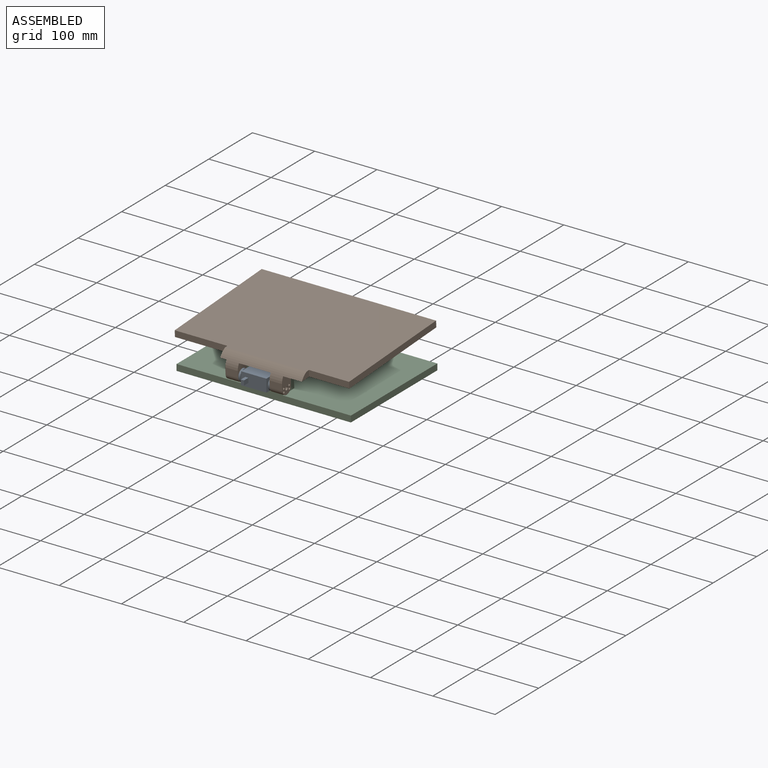
[diagram: assembled view]
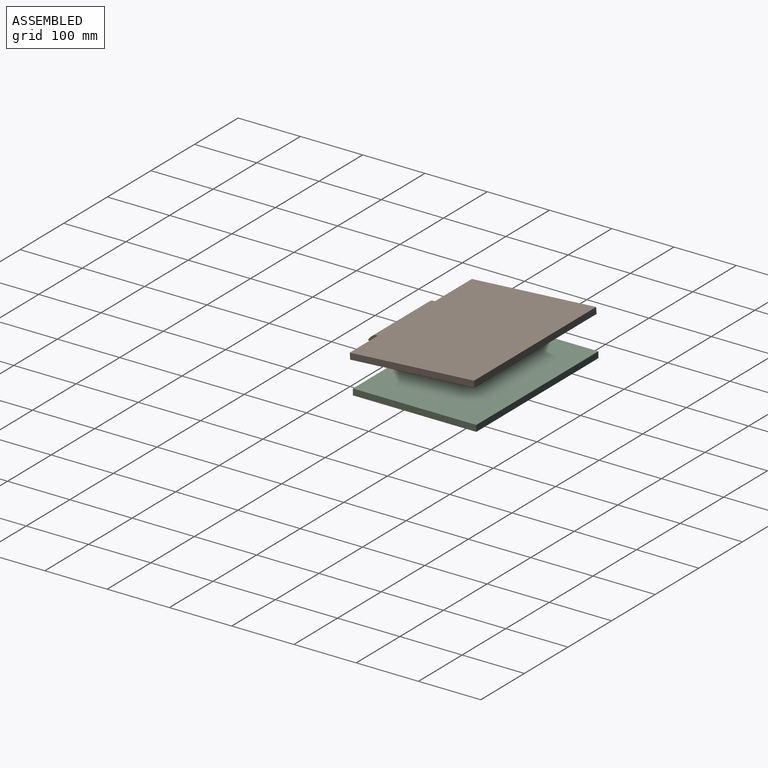
[diagram: assembled view, second angle]
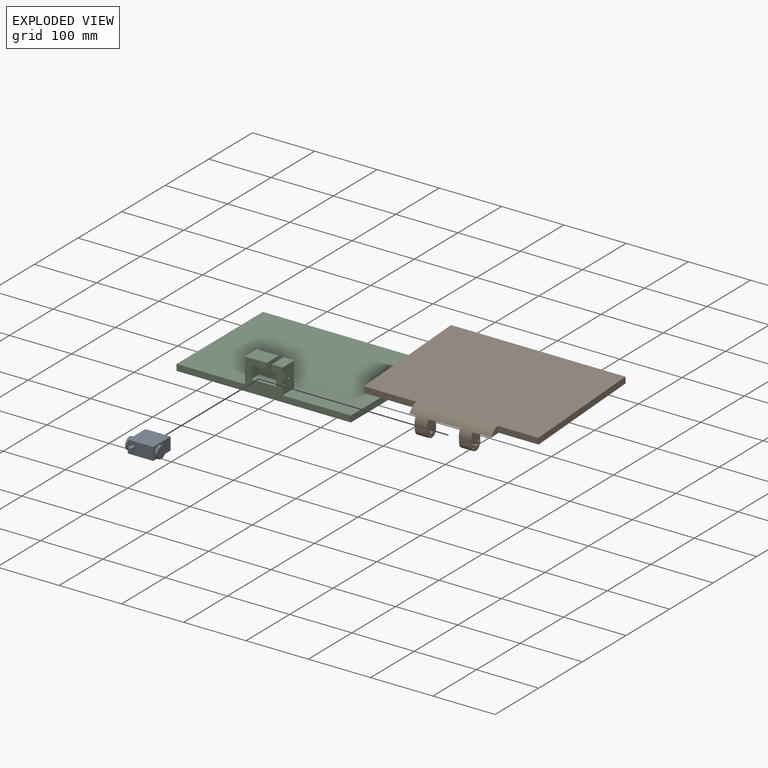
[diagram: exploded view]
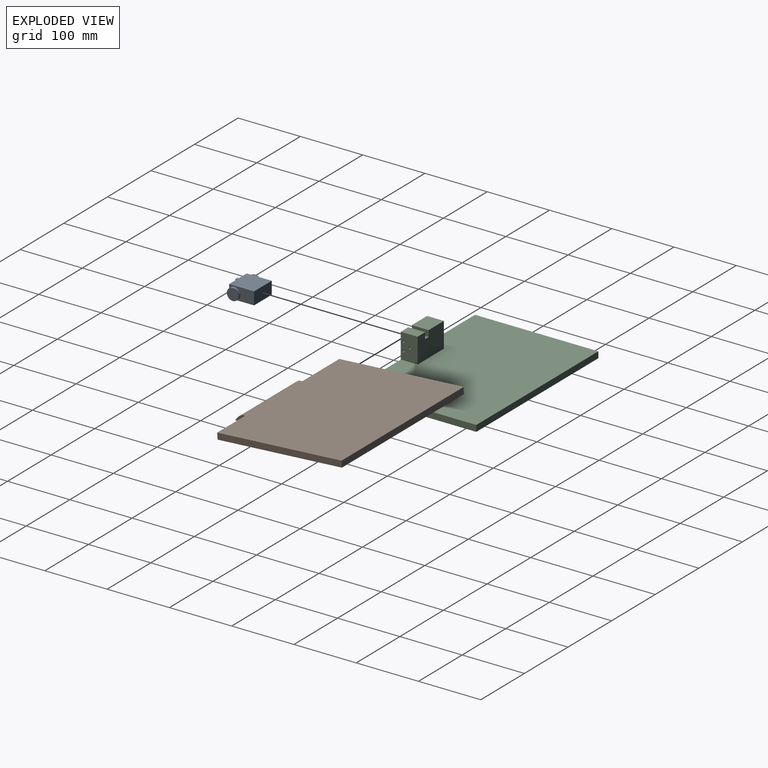
[diagram: exploded view, second angle]
ASSEMBLY  parts=3 mates=5
PART A: 19 faces, bbox 51.5x20.3x50 mm
  f0: plane 40.5x20.3mm, normal (0,0,1), area 784.7mm2, adj f1,f3,f4,f5,f14,f15,f16,f17
  f1: plane 40x20.3mm, normal (-1,0,0), area 792.4mm2, adj f0,f2,f4,f5,f6
  f2: plane 40.5x20.3mm, normal (0,0,-1), area 822.2mm2, adj f1,f3,f4,f5
  f3: plane 40x20.3mm, normal (1,0,0), area 792.4mm2, adj f0,f2,f4,f5,f7
  f4: plane 40.5x40mm, normal (0,-1,0), area 1620mm2, adj f0,f1,f2,f3
  f5: plane 40.5x40mm, normal (0,1,0), area 1620mm2, adj f0,f1,f2,f3
  f6: cylinder r=2.5mm len=5mm, axis (1,0,0), area 31.4mm2, adj f1,f10
  f7: cylinder r=2.5mm len=5mm, axis (-1,0,0), area 31.4mm2, adj f3,f13
  f8: cylinder r=9.5mm len=19mm, axis (1,0,0), area 238.8mm2, adj f9,f10
  f9: plane 19x19mm, normal (-1,0,0), area 283.5mm2, adj f8
  f10: plane 19x19mm, normal (1,0,0), area 263.9mm2, adj f6,f8
  f11: cylinder r=9.5mm len=19mm, axis (-1,0,0), area 179.1mm2, adj f12,f13
  f12: plane 19x19mm, normal (1,0,0), area 283.5mm2, adj f11
  f13: plane 19x19mm, normal (-1,0,0), area 263.9mm2, adj f7,f11
  f14: plane 10x5mm, normal (0,1,0), area 50mm2, adj f0,f15,f17,f18
  f15: plane 10x7.5mm, normal (-1,0,0), area 75mm2, adj f0,f14,f16,f18
  f16: plane 10x5mm, normal (0,-1,0), area 50mm2, adj f0,f15,f17,f18
  f17: plane 10x7.5mm, normal (1,0,0), area 75mm2, adj f0,f14,f16,f18
  f18: plane 7.5x5mm, normal (0,0,1), area 37.5mm2, adj f14,f15,f16,f17
PART B: 48 faces, bbox 280x220.3x40.3 mm
  f0: plane 30.3x25.3mm, normal (-1,0,0), area 486mm2, adj f4,f9,f14,f17,f33,f35,f37,f39
  f1: plane 30.3x25.3mm, normal (1,0,0), area 500.7mm2, adj f4,f8,f15,f18,f19,f21,f23,f25
  f2: plane 30.3x25.3mm, normal (1,0,0), area 510.6mm2, adj f4,f9,f10,f11,f12,f13,f14,f17
  f3: plane 30.3x25.3mm, normal (-1,0,0), area 525.3mm2, adj f4,f8,f15,f18,f19,f28,f29,f30
  f4: plane 280x216.84mm, normal (0,0,-1), area 57332.4mm2, adj f0,f1,f2,f3,f5,f6,f7,f41
  f5: plane 16.84x10mm, normal (1,0,0), area 122.9mm2, adj f4,f16,f41,f45
  f6: plane 16.84x10mm, normal (-1,0,0), area 122.9mm2, adj f4,f7,f16,f45
  f7: plane 84.5x10mm, normal (0,-1,0), area 845mm2, adj f4,f6,f16,f42
  f8: plane 20x10.15mm, normal (0,-1,0), area 203mm2, adj f1,f3,f18,f45
  f9: plane 20x15.15mm, normal (0,1,0), area 303mm2, adj f0,f2,f17,f47
  f10: cylinder r=1.05mm len=2.1mm, axis (1,0,0), area 9.9mm2, adj f2,f38
  f11: cylinder r=1.05mm len=2.1mm, axis (1,0,0), area 9.9mm2, adj f2,f36
  f12: cylinder r=1.05mm len=2.1mm, axis (1,0,0), area 9.9mm2, adj f2,f34
  f13: cylinder r=1.05mm len=2.1mm, axis (1,0,0), area 9.9mm2, adj f2,f32
  f14: plane 20x10.15mm, normal (0,-1,0), area 203mm2, adj f0,f2,f17,f45
  f15: plane 20x15.15mm, normal (0,1,0), area 303mm2, adj f1,f3,f18,f46
  f16: plane 280x205.3mm, normal (0,0,1), area 56694.3mm2, adj f5,f6,f7,f41,f42,f43,f44,f45
  f17: cylinder r=10.15mm len=20.3mm, axis (1,0,0), area 637.7mm2, adj f0,f2,f9,f14
  f18: cylinder r=10.15mm len=20.3mm, axis (1,0,0), area 637.7mm2, adj f1,f3,f8,f15
  f19: cylinder r=2.75mm len=20mm, axis (1,0,0), area 345.6mm2, adj f1,f3
  f20: plane 3.5x3.5mm, normal (1,0,0), area 6.2mm2, adj f21,f28
  f21: cylinder r=1.75mm len=18.5mm, axis (1,0,0), area 203.4mm2, adj f1,f20
  f22: plane 3.5x3.5mm, normal (1,0,0), area 6.2mm2, adj f23,f29
  f23: cylinder r=1.75mm len=18.5mm, axis (1,0,0), area 203.4mm2, adj f1,f22
  f24: plane 3.5x3.5mm, normal (1,0,0), area 6.2mm2, adj f25,f31
  f25: cylinder r=1.75mm len=18.5mm, axis (1,0,0), area 203.4mm2, adj f1,f24
  f26: plane 3.5x3.5mm, normal (1,0,0), area 6.2mm2, adj f27,f30
  f27: cylinder r=1.75mm len=18.5mm, axis (1,0,0), area 203.4mm2, adj f1,f26
  f28: cylinder r=1.05mm len=2.1mm, axis (1,0,0), area 9.9mm2, adj f3,f20
  f29: cylinder r=1.05mm len=2.1mm, axis (1,0,0), area 9.9mm2, adj f3,f22
  f30: cylinder r=1.05mm len=2.1mm, axis (1,0,0), area 9.9mm2, adj f3,f26
  f31: cylinder r=1.05mm len=2.1mm, axis (1,0,0), area 9.9mm2, adj f3,f24
  f32: plane 3.5x3.5mm, normal (-1,0,0), area 6.2mm2, adj f13,f33
  f33: cylinder r=1.75mm len=18.5mm, axis (-1,0,0), area 203.4mm2, adj f0,f32
  f34: plane 3.5x3.5mm, normal (-1,0,0), area 6.2mm2, adj f12,f35
  f35: cylinder r=1.75mm len=18.5mm, axis (-1,0,0), area 203.4mm2, adj f0,f34
  f36: plane 3.5x3.5mm, normal (-1,0,0), area 6.2mm2, adj f11,f37
  f37: cylinder r=1.75mm len=18.5mm, axis (-1,0,0), area 203.4mm2, adj f0,f36
  f38: plane 3.5x3.5mm, normal (-1,0,0), area 6.2mm2, adj f10,f39
  f39: cylinder r=1.75mm len=18.5mm, axis (-1,0,0), area 203.4mm2, adj f0,f38
  f40: cylinder r=3.5mm len=20mm, axis (-1,0,0), area 439.8mm2, adj f0,f2
  f41: plane 64.5x10mm, normal (0,-1,0), area 645mm2, adj f4,f5,f16,f43
  f42: plane 200x10mm, normal (-1,0,0), area 2000mm2, adj f4,f7,f16,f44
  f43: plane 200x10mm, normal (1,0,0), area 2000mm2, adj f4,f16,f41,f44
  f44: plane 280x10mm, normal (0,1,0), area 2800mm2, adj f4,f16,f42,f43
  f45: cylinder r=25mm len=131mm, axis (1,0,0), area 2459.3mm2, adj f0,f1,f2,f3,f4,f5,f6,f8
  f46: cylinder r=5mm len=20mm, axis (-1,0,0), area 157.1mm2, adj f1,f3,f4,f15
  f47: cylinder r=5mm len=20mm, axis (-1,0,0), area 157.1mm2, adj f0,f2,f4,f9
PART C: 29 faces, bbox 280x198.2x50.3 mm
  f0: cylinder r=1.05mm len=2.1mm, axis (1,0,0), area 9.9mm2, adj f14,f27
  f1: cylinder r=1.05mm len=2.1mm, axis (1,0,0), area 9.9mm2, adj f14,f25
  f2: cylinder r=1.05mm len=2.1mm, axis (1,0,0), area 9.9mm2, adj f14,f23
  f3: plane 40.3x27mm, normal (-1,0,0), area 1088.1mm2, adj f5,f9,f16,f22
  f4: plane 40.3x27mm, normal (1,0,0), area 1059.2mm2, adj f5,f11,f16,f22,f24,f26,f28
  f5: plane 60.3x40.3mm, normal (0,1,0), area 2350.1mm2, adj f3,f4,f8,f9,f11,f12,f18,f22
  f6: plane 20.3x17mm, normal (1,0,0), area 345.1mm2, adj f7,f15,f16,f17
  f7: plane 25x17mm, normal (0,0,-1), area 425mm2, adj f6,f8,f16,f17
  f8: plane 27x10mm, normal (1,0,0), area 270mm2, adj f5,f7,f9,f16,f18
  f9: plane 35x27mm, normal (0,0,1), area 945mm2, adj f3,f5,f8,f16
  f10: plane 280x198.15mm, normal (0,0,-1), area 55482mm2, adj f16,f19,f20,f21
  f11: plane 27x17.3mm, normal (0,0,1), area 467.1mm2, adj f4,f5,f12,f16
  f12: plane 27x10mm, normal (-1,0,0), area 270mm2, adj f5,f11,f13,f16,f18
  f13: plane 17x7.3mm, normal (0,0,-1), area 124.1mm2, adj f12,f14,f16,f17
  f14: plane 20.3x17mm, normal (-1,0,0), area 334.7mm2, adj f0,f1,f2,f13,f15,f16,f17
  f15: plane 40.3x17mm, normal (0,0,1), area 685.1mm2, adj f6,f14,f16,f17
  f16: plane 280x50.3mm, normal (0,-1,0), area 4332mm2, adj f3,f4,f6,f7,f8,f9,f10,f11
  f17: plane 40.3x20.3mm, normal (0,-1,0), area 818.1mm2, adj f6,f7,f13,f14,f15,f18
  f18: plane 10x8mm, normal (0,0,1), area 80mm2, adj f5,f8,f12,f17
  f19: plane 198.15x10mm, normal (-1,0,0), area 1981.5mm2, adj f10,f16,f20,f22
  f20: plane 280x10mm, normal (0,1,0), area 2800mm2, adj f10,f19,f21,f22
  f21: plane 198.15x10mm, normal (1,0,0), area 1981.5mm2, adj f10,f16,f20,f22
  f22: plane 280x198.15mm, normal (0,0,1), area 53853.9mm2, adj f3,f4,f5,f16,f19,f20,f21
  f23: plane 3.5x3.5mm, normal (1,0,0), area 6.2mm2, adj f2,f24
  f24: cylinder r=1.75mm len=8.5mm, axis (1,0,0), area 93.5mm2, adj f4,f23
  f25: plane 3.5x3.5mm, normal (1,0,0), area 6.2mm2, adj f1,f26
  f26: cylinder r=1.75mm len=8.5mm, axis (1,0,0), area 93.5mm2, adj f4,f25
  f27: plane 3.5x3.5mm, normal (1,0,0), area 6.2mm2, adj f0,f28
  f28: cylinder r=1.75mm len=8.5mm, axis (1,0,0), area 93.5mm2, adj f4,f27
PLACE A rot(axis=(0,-0.71,0.71),180deg) t=(10.66,-57.24,36.88)mm
PLACE B rot(axis=(1,0,0),3.6deg) t=(-34.84,-76.46,37.45)mm
PLACE C t=(-9.69,-57.24,47.03)mm fixed
MATE planar A.f2 <-> C.f17  axis (0,1,0) through (-9.59,-57.24,47.03)mm
MATE cylindrical B.f17 <-> A.f7  axis (1,0,0) through (-54.84,-87.24,47.03)mm
MATE planar A.f3 <-> C.f6  axis (-1,0,0) through (-29.84,-76.99,47.03)mm
MATE planar A.f5 <-> C.f15  axis (0,0,-1) through (-9.59,-77.24,36.88)mm
MATE planar B.f2 <-> A.f7  axis (1,0,0) through (-34.84,-77.59,55.24)mm
